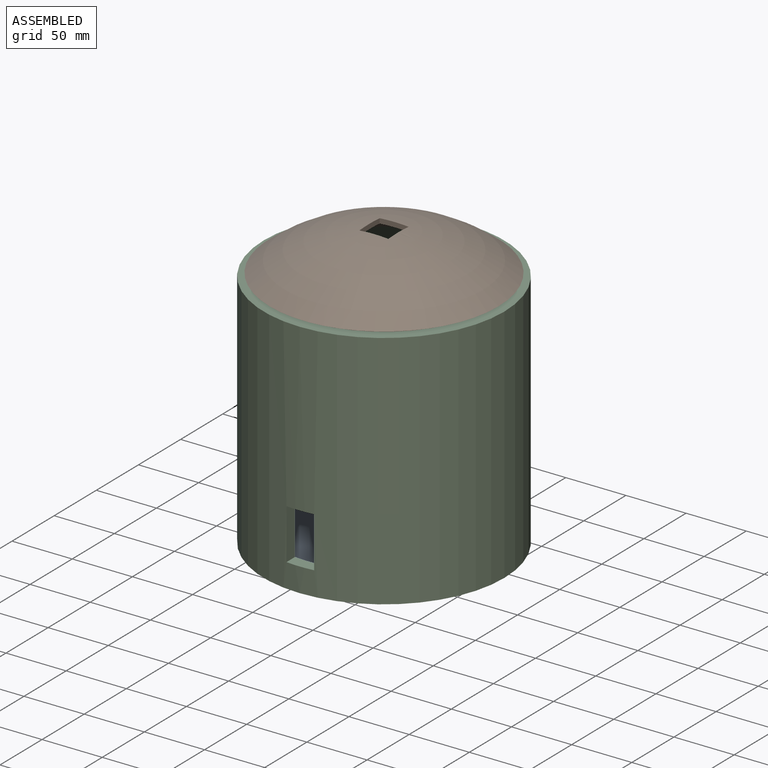
[diagram: assembled view]
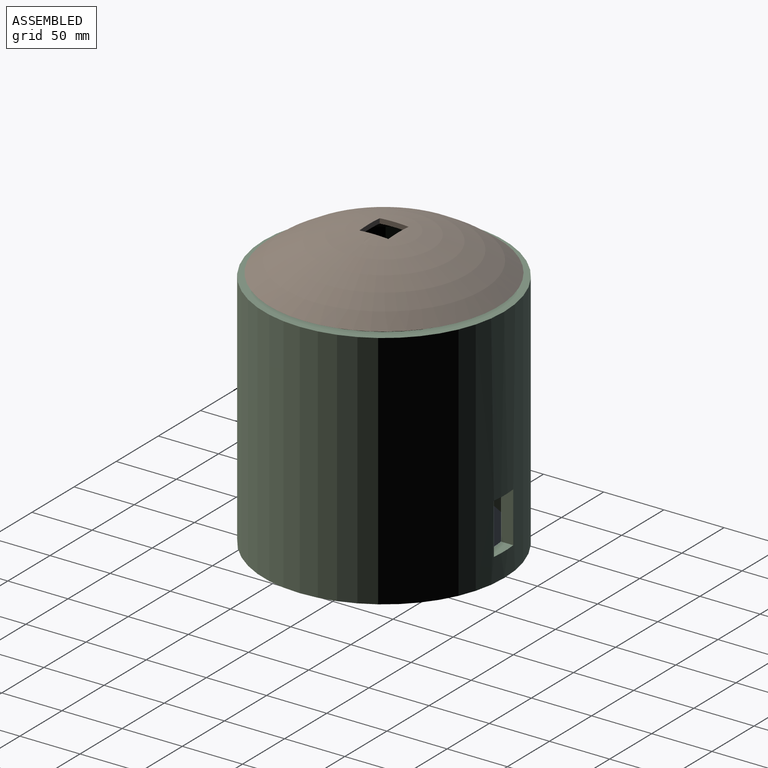
[diagram: assembled view, second angle]
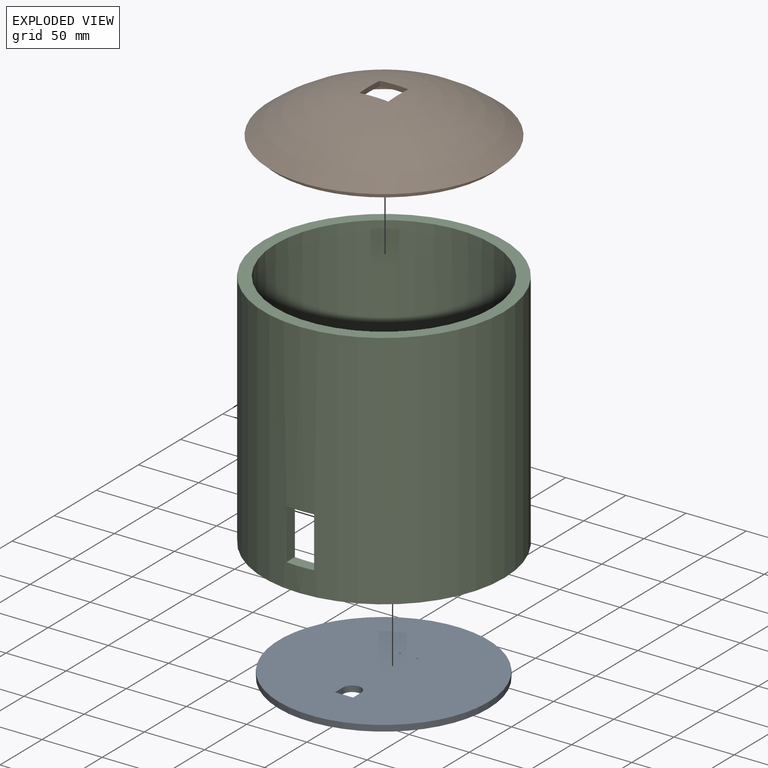
[diagram: exploded view]
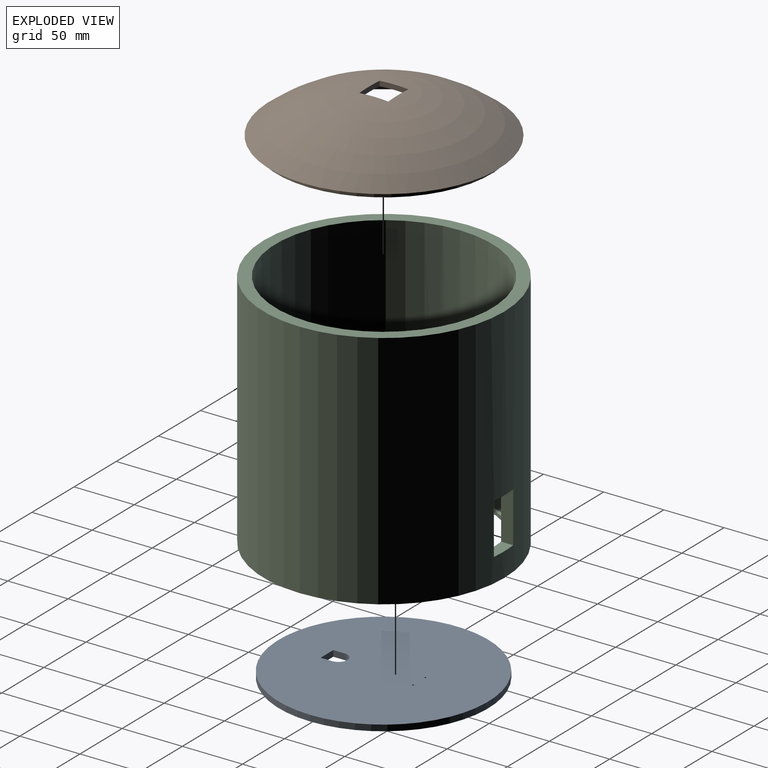
[diagram: exploded view, second angle]
ASSEMBLY  parts=3 mates=2
PART A: 9 faces, bbox 174x174x5 mm
  f0: cylinder r=87mm len=174mm, axis (0,0,-1), area 2733.2mm2, adj f1,f2
  f1: plane 174x174mm, normal (0,0,1), area 23543.9mm2, adj f0,f3,f4,f5,f6,f7,f8
  f2: plane 174x174mm, normal (0,0,-1), area 23543.9mm2, adj f0,f3,f4,f5,f6,f7,f8
  f3: plane 9.53x5mm, normal (-1,0,0), area 47.6mm2, adj f1,f2,f4,f6
  f4: cylinder r=7.5mm len=15mm, axis (0,0,-1), area 117.8mm2, adj f1,f2,f3,f5
  f5: plane 9.53x5mm, normal (1,0,0), area 47.6mm2, adj f1,f2,f4,f6
  f6: plane 15x5mm, normal (0,1,0), area 75mm2, adj f1,f2,f3,f5
  f7: cylinder r=0.75mm len=5mm, axis (0,0,-1), area 23.6mm2, adj f1,f2
  f8: cylinder r=0.75mm len=5mm, axis (0,0,-1), area 23.6mm2, adj f1,f2
PART B: 10 faces, bbox 190x190x38.5 mm
  f0: torus R=0.05mm, axis (0,0,1), area 24950.3mm2, adj f1,f6,f7,f8,f9
  f1: cylinder r=85mm len=170mm, axis (0,0,1), area 2670.4mm2, adj f0,f2
  f2: plane 179x179mm, normal (0,0,-1), area 2466.9mm2, adj f1,f3
  f3: cylinder r=89.5mm len=179mm, axis (0,0,1), area 2811.7mm2, adj f2,f4
  f4: plane 190x190mm, normal (0,0,-1), area 3187.9mm2, adj f3,f5
  f5: torus R=0.05mm, axis (0,0,1), area 31410.1mm2, adj f4,f6,f7,f8,f9
  f6: plane 24x4.59mm, normal (-1,0,0), area 97.6mm2, adj f0,f5,f7,f9
  f7: plane 24x4.59mm, normal (0,-1,0), area 97.6mm2, adj f0,f5,f6,f8
  f8: plane 24x4.59mm, normal (1,0,0), area 97.6mm2, adj f0,f5,f7,f9
  f9: plane 24x4.59mm, normal (0,1,0), area 97.6mm2, adj f0,f5,f6,f8
PART C: 23 faces, bbox 200x200x200 mm
  f0: plane 12.58x3.34mm, normal (0,0,1), area 41.9mm2, adj f1,f20,f21,f22
  f1: cylinder r=90mm len=197mm, axis (0,0,-1), area 108949.1mm2, adj f0,f3,f5,f6,f7,f8,f9,f10
  f2: cylinder r=100mm len=200mm, axis (0,0,-1), area 123292.7mm2, adj f3,f4,f5,f6,f7,f8,f9,f10
  f3: plane 200x200mm, normal (0,0,1), area 5969mm2, adj f1,f2
  f4: plane 200x200mm, normal (0,0,-1), area 7363.1mm2, adj f2,f15
  f5: cylinder r=8mm len=16mm, axis (1,0,0), area 508.4mm2, adj f1,f2
  f6: cylinder r=8mm len=16mm, axis (1,0,0), area 508.4mm2, adj f1,f2
  f7: plane 42x10.07mm, normal (1,0,0), area 423.1mm2, adj f1,f2,f8,f10
  f8: plane 23x10.74mm, normal (0,0,-1), area 230.6mm2, adj f1,f2,f7,f9
  f9: plane 42x10.07mm, normal (-1,0,0), area 423.1mm2, adj f1,f2,f8,f10
  f10: plane 23x10.74mm, normal (0,0,1), area 230.6mm2, adj f1,f2,f7,f9
  f11: plane 23x10.74mm, normal (0,0,1), area 230.6mm2, adj f1,f2,f12,f14
  f12: plane 42x10.07mm, normal (-1,0,0), area 423.1mm2, adj f1,f2,f11,f13
  f13: plane 23x10.74mm, normal (0,0,-1), area 230.6mm2, adj f1,f2,f12,f14
  f14: plane 42x10.07mm, normal (1,0,0), area 423.1mm2, adj f1,f2,f11,f13
  f15: cylinder r=87.5mm len=175mm, axis (0,0,-1), area 1649.3mm2, adj f4,f16
  f16: plane 180x180mm, normal (0,0,1), area 1394.1mm2, adj f1,f15
  f17: plane 12.58x3.34mm, normal (0,0,1), area 41.9mm2, adj f1,f19,f21,f22
  f18: plane 12.6x10mm, normal (0,0,-1), area 125.5mm2, adj f1,f19,f20,f21
  f19: plane 12.46x8mm, normal (0,-1,0), area 99.7mm2, adj f1,f17,f18,f21
  f20: plane 12.46x8mm, normal (0,1,0), area 99.7mm2, adj f0,f1,f18,f21
  f21: plane 10x8mm, normal (1,0,0), area 78.9mm2, adj f0,f17,f18,f19,f20,f22
  f22: cylinder r=3mm len=22.6mm, axis (1,0,0), area 232.9mm2, adj f0,f1,f2,f17,f21
PLACE A t=(240.13,-44.71,12.21)mm
PLACE B t=(240.13,-44.33,213.01)mm
PLACE C t=(240.13,-44.33,10.49)mm
MATE cylindrical C.f2 <-> A.f2  axis (0,0,-1) through (240.13,-44.33,110.49)mm
MATE cylindrical B.f0 <-> C.f2  axis (0,0,1) through (240.13,-44.33,236.24)mm
